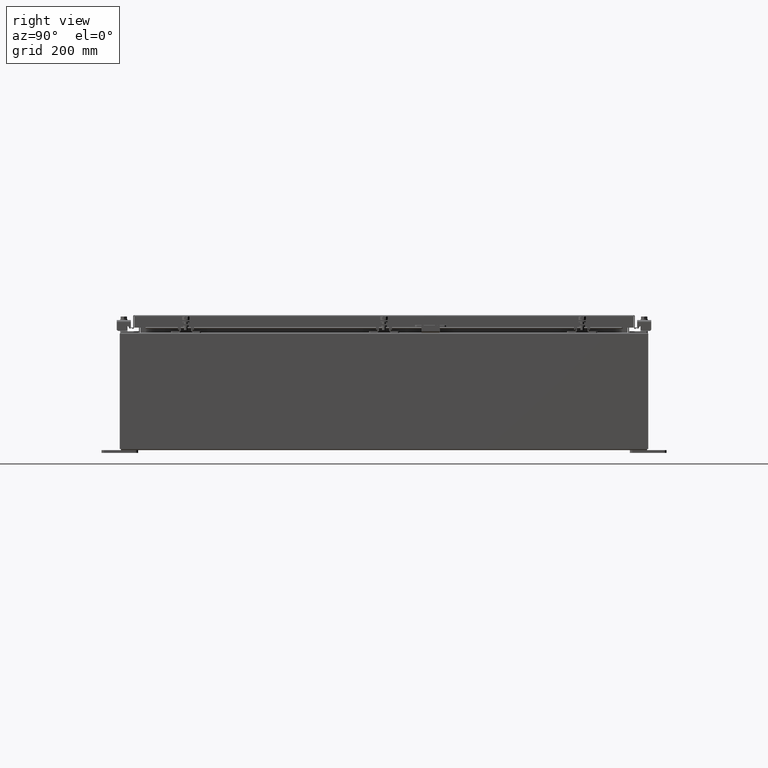
[diagram: clean part render]
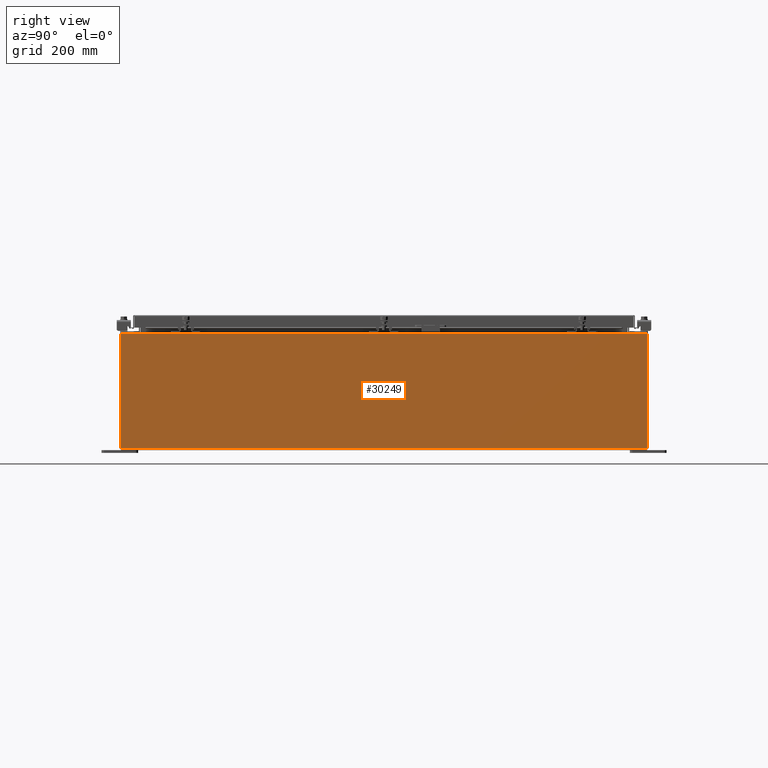
[diagram: same view with one face highlighted and labeled with its STEP entity id]
A machine part, right view. The second image highlights one B-rep face of the part: STEP entity #30249.
In plain terms, the highlighted planar face has unit normal (-1, 0, 0).
Its self-contained STEP definition (entity closure, byte-faithful):
#1565 = ORIENTED_EDGE ( 'NONE', *, *, #28120, .F. ) ;
#2410 = LINE ( 'NONE', #12628, #10224 ) ;
#2566 = CARTESIAN_POINT ( 'NONE',  ( 14.99999999999999800, 17.92530000000000000, -5.403395625144962100E-014 ) ) ;
#5917 = DIRECTION ( 'NONE',  ( 3.584876173029202900E-015, 0.0000000000000000000, 1.000000000000000000 ) ) ;
#7233 = VECTOR ( 'NONE', #5917, 39.37007874015748100 ) ;
#8180 = DIRECTION ( 'NONE',  ( -0.0000000000000000000, -1.000000000000000000, -0.0000000000000000000 ) ) ;
#9344 = VERTEX_POINT ( 'NONE', #33874 ) ;
#10224 = VECTOR ( 'NONE', #19181, 39.37007874015748100 ) ;
#11785 = EDGE_CURVE ( 'NONE', #37702, #30325, #2410, .T. ) ;
#12628 = CARTESIAN_POINT ( 'NONE',  ( 14.99999999999999800, -17.92530000000000000, -5.403395625144962100E-014 ) ) ;
#13005 = DIRECTION ( 'NONE',  ( -1.000000000000000000, 0.0000000000000000000, 3.584876173029202900E-015 ) ) ;
#13432 = CARTESIAN_POINT ( 'NONE',  ( 14.99999999999999800, -17.92530000000000000, 0.01300000000000021600 ) ) ;
#17239 = EDGE_LOOP ( 'NONE', ( #41354, #31135, #1565, #37645 ) ) ;
#17725 = EDGE_CURVE ( 'NONE', #37984, #37702, #31792, .T. ) ;
#18268 = CARTESIAN_POINT ( 'NONE',  ( 14.99999999999999800, -17.92530000000000000, 0.01299999999999984700 ) ) ;
#19181 = DIRECTION ( 'NONE',  ( -3.584876173029202900E-015, 0.0000000000000000000, -1.000000000000000000 ) ) ;
#24958 = DIRECTION ( 'NONE',  ( 2.185366332686126200E-031, -1.000000000000000000, 6.096072018129156600E-017 ) ) ;
#28120 = EDGE_CURVE ( 'NONE', #9344, #30325, #30453, .T. ) ;
#28289 = CARTESIAN_POINT ( 'NONE',  ( 15.00000000000002700, 17.92530000000000000, 7.837599999999992100 ) ) ;
#29412 = VECTOR ( 'NONE', #24958, 39.37007874015748100 ) ;
#29615 = PLANE ( 'NONE',  #29837 ) ;
#29837 = AXIS2_PLACEMENT_3D ( 'NONE', #32994, #13005, #36320 ) ;
#30249 = ADVANCED_FACE ( 'NONE', ( #31732 ), #29615, .F. ) ;
#30325 = VERTEX_POINT ( 'NONE', #13432 ) ;
#30453 = LINE ( 'NONE', #18268, #29412 ) ;
#30746 = VECTOR ( 'NONE', #8180, 39.37007874015748100 ) ;
#31135 = ORIENTED_EDGE ( 'NONE', *, *, #11785, .T. ) ;
#31732 = FACE_OUTER_BOUND ( 'NONE', #17239, .T. ) ;
#31764 = CARTESIAN_POINT ( 'NONE',  ( 15.00000000000002700, 17.92530000000000000, 7.837599999999992100 ) ) ;
#31792 = LINE ( 'NONE', #28289, #30746 ) ;
#32994 = CARTESIAN_POINT ( 'NONE',  ( 14.99999999999999800, 0.0000000000000000000, -5.403395625144962100E-014 ) ) ;
#33857 = LINE ( 'NONE', #2566, #7233 ) ;
#33874 = CARTESIAN_POINT ( 'NONE',  ( 14.99999999999999800, 17.92530000000000000, 0.01299999999999766100 ) ) ;
#36320 = DIRECTION ( 'NONE',  ( 3.584876173029202900E-015, 0.0000000000000000000, 1.000000000000000000 ) ) ;
#36764 = CARTESIAN_POINT ( 'NONE',  ( 15.00000000000002700, -17.92530000000000000, 7.837599999999998300 ) ) ;
#36768 = EDGE_CURVE ( 'NONE', #9344, #37984, #33857, .T. ) ;
#37645 = ORIENTED_EDGE ( 'NONE', *, *, #36768, .T. ) ;
#37702 = VERTEX_POINT ( 'NONE', #36764 ) ;
#37984 = VERTEX_POINT ( 'NONE', #31764 ) ;
#41354 = ORIENTED_EDGE ( 'NONE', *, *, #17725, .T. ) ;